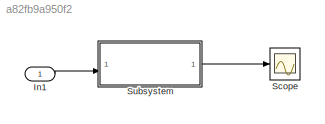
MODEL slx_a82fb9a950f2
KIND model
CONFIG AbsTol = auto
CONFIG EnableMultiTasking = off
CONFIG FixedStep = 0.02
CONFIG MaxStep = auto
CONFIG MinStep = auto
CONFIG RelTol = 1e-3
CONFIG SampleTimeConstraint = Unconstrained
CONFIG SolverName = FixedStepAuto
CONFIG StartTime = 0.0
CONFIG StopTime = 10.0
BLOCK [Inport] In1
BLOCK [Scope] Scope
  Floating = off
  NumInputPorts = 1
  ScopeSpecificationString = Simulink.scopes.TimeScopeBlockCfg('CurrentConfiguration', extmgr.ConfigurationSet(extmgr.Configuration('Core','General UI',true),extmgr.Configuration('Core','Source UI',true),extmgr.Configuration('Sources','WiredSimulink',true),extmgr.Configuration('Visuals','Time Domain',true,'SerializedDisplays',{struct('MinYLimReal','-62.5','MaxYLimReal','562.5','YLabelReal','','MinYLimMag','0.00000','MaxYLimMa...<+1341ch>
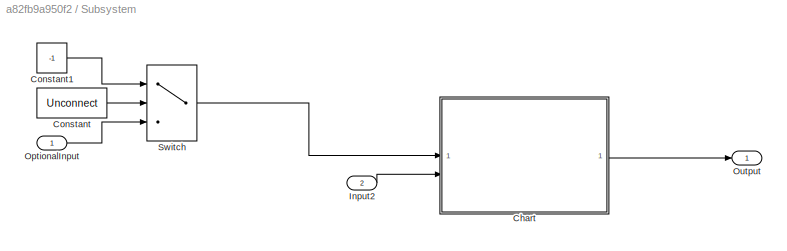
BLOCK [SubSystem] Subsystem
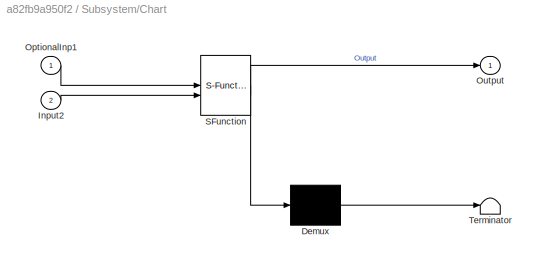
BLOCK [SubSystem] Subsystem/Chart
  ErrorFcn = Stateflow.Translate.translate
  PermitHierarchicalResolution = ExplicitOnly
  SFBlockType = Chart
  TreatAsAtomicUnit = on
BLOCK [Demux] Subsystem/Chart/ Demux 
  Outputs = 1
BLOCK [S-Function] Subsystem/Chart/ SFunction 
  EnableBusSupport = on
  FunctionName = sf_sfun
  PortCounts = [2 2]
  SFcnIsStateOwnerBlock = off
  SFunctionDeploymentMode = off
  Tag = Stateflow S-Function 3
BLOCK [Terminator] Subsystem/Chart/ Terminator 
BLOCK [Inport] Subsystem/Chart/Input2
  Port = 2
BLOCK [Inport] Subsystem/Chart/OptionalInp1
BLOCK [Outport] Subsystem/Chart/Output
BLOCK [Constant] Subsystem/Constant
  OutDataTypeStr = boolean
  Value = Unconnect
BLOCK [Constant] Subsystem/Constant1
  Value = -1
BLOCK [Inport] Subsystem/Input2
  Port = 2
BLOCK [Inport] Subsystem/OptionalInput
BLOCK [Outport] Subsystem/Output
BLOCK [Switch] Subsystem/Switch
  Criteria = u2 > Threshold
  InputSameDT = off
  SaturateOnIntegerOverflow = off
LINE In1:1 -> Subsystem:2
LINE Subsystem/Chart:1 -> Subsystem/Output:1
LINE Subsystem/Constant1:1 -> Subsystem/Switch:1
LINE Subsystem/Constant:1 -> Subsystem/Switch:2
LINE Subsystem/Input2:1 -> Subsystem/Chart:2
LINE Subsystem/OptionalInput:1 -> Subsystem/Switch:3
LINE Subsystem/Switch:1 -> Subsystem/Chart:1
LINE Subsystem:1 -> Scope:1
CHART Subsystem/Chart states=3 transitions=5
  STATE_LABEL 'Init\nen: Output=0;'
  STATE_LABEL 'Run1\nen, du: Output=100;'
  STATE_LABEL 'Run\nen, du: Output=Output+1;'
CHART  states=0 transitions=0
